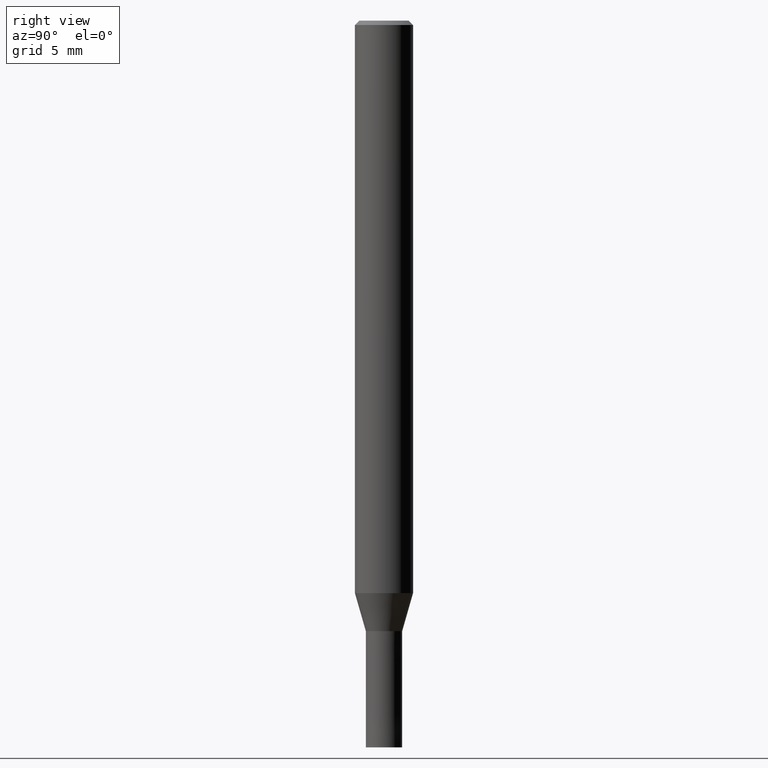
[diagram: clean part render]
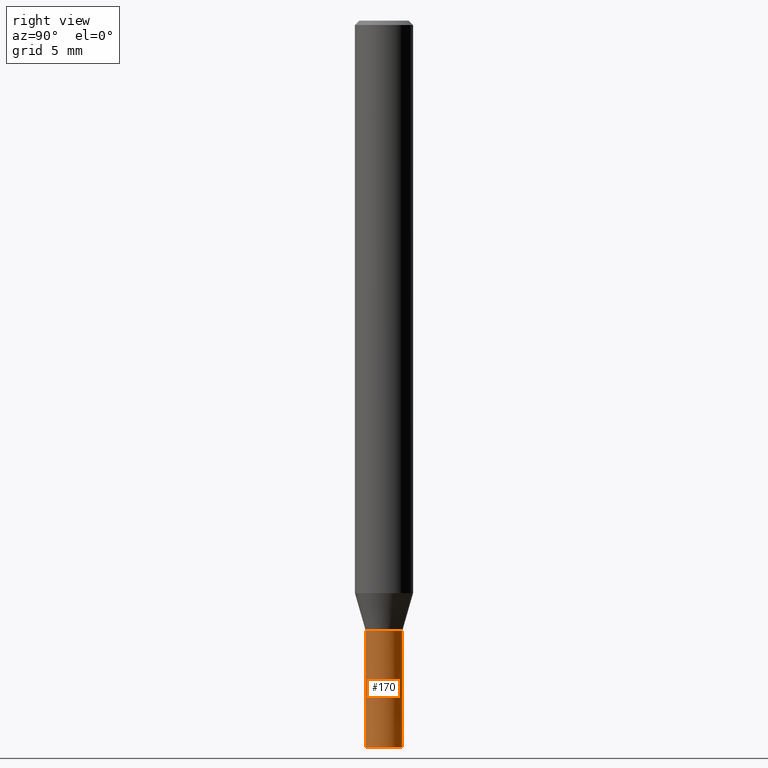
[diagram: same view with one face highlighted and labeled with its STEP entity id]
A machine part, right view. The second image highlights one B-rep face of the part: STEP entity #170.
In plain terms, the highlighted conical surface has half-angle 0.001 deg.
Its self-contained STEP definition (entity closure, byte-faithful):
#120=VERTEX_POINT('',#243);
#124=VERTEX_POINT('',#249);
#128=VERTEX_POINT('',#254);
#132=EDGE_CURVE('',#120,#124,#258,.T.);
#146=EDGE_CURVE('',#120,#164,#273,.T.);
#164=VERTEX_POINT('',#295);
#170=ADVANCED_FACE('',(#302),#303,.T.);
#174=EDGE_CURVE('',#128,#124,#308,.T.);
#176=EDGE_CURVE('',#164,#128,#310,.T.);
#243=CARTESIAN_POINT('',(0.0,1.2499,-42.0));
#249=CARTESIAN_POINT('',(1.53063548164259E-016,-1.2499,-42.0));
#254=CARTESIAN_POINT('',(1.53075794227797E-016,-1.25,-50.0));
#258=CIRCLE('',#400,1.2499);
#273=LINE('',#417,#418);
#295=CARTESIAN_POINT('',(0.0,1.25,-50.0));
#302=FACE_OUTER_BOUND('',#452,.T.);
#303=CONICAL_SURFACE('',#453,1.24995,1.24999999993476E-005);
#308=LINE('',#459,#460);
#310=CIRCLE('',#463,1.25);
#400=AXIS2_PLACEMENT_3D('',#532,#533,#534);
#417=CARTESIAN_POINT('',(-1.53069671196028E-016,1.24995,-46.0));
#418=VECTOR('',#546,1.0);
#452=EDGE_LOOP('',(#594,#595,#596,#597));
#453=AXIS2_PLACEMENT_3D('',#598,#599,#600);
#459=CARTESIAN_POINT('',(1.53069671196028E-016,-1.24995,-46.0));
#460=VECTOR('',#609,1.0);
#463=AXIS2_PLACEMENT_3D('',#610,#611,#612);
#532=CARTESIAN_POINT('',(0.0,0.0,-42.0));
#533=DIRECTION('',(0.0,0.0,-1.0));
#534=DIRECTION('',(0.0,1.0,0.0));
#546=DIRECTION('',(-1.53075794215821E-021,1.24999999990221E-005,-0.999999999921875));
#594=ORIENTED_EDGE('',*,*,#146,.F.);
#595=ORIENTED_EDGE('',*,*,#132,.T.);
#596=ORIENTED_EDGE('',*,*,#174,.F.);
#597=ORIENTED_EDGE('',*,*,#176,.F.);
#598=CARTESIAN_POINT('',(0.0,0.0,-46.0));
#599=DIRECTION('',(0.0,-0.0,-1.0));
#600=DIRECTION('',(0.0,1.0,0.0));
#609=DIRECTION('',(-1.53075794215821E-021,1.24999999990221E-005,0.999999999921875));
#610=CARTESIAN_POINT('',(0.0,0.0,-50.0));
#611=DIRECTION('',(0.0,0.0,-1.0));
#612=DIRECTION('',(0.0,1.0,0.0));